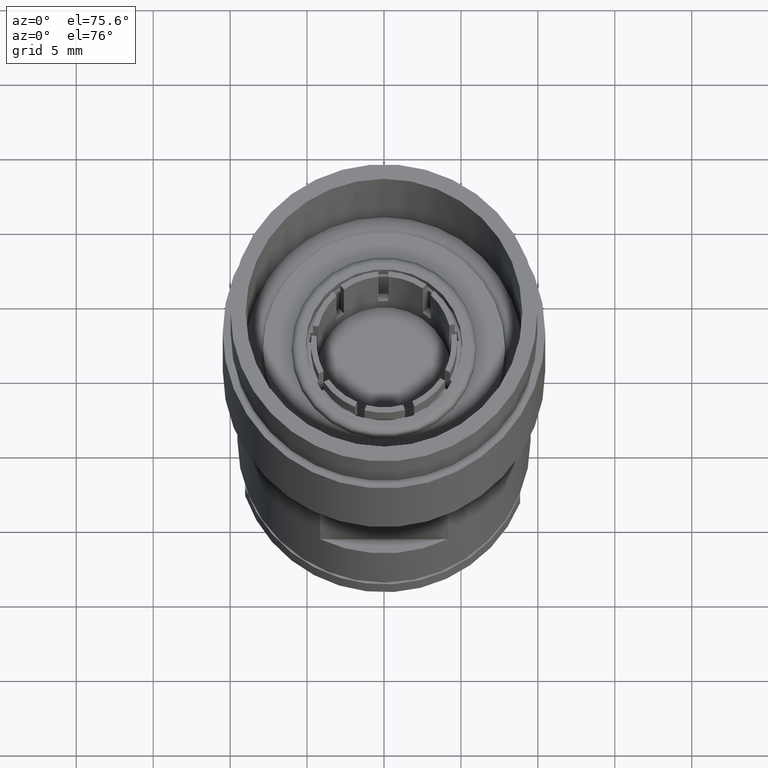
[diagram: clean part render]
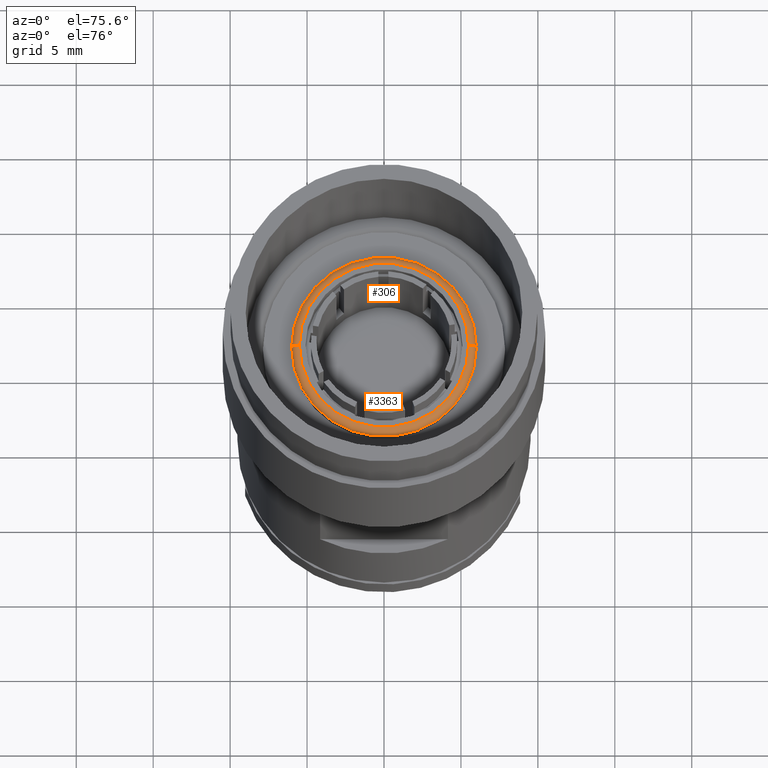
[diagram: same view with one multi-face feature highlighted, each face labeled with its STEP entity id]
A machine part, auxiliary view. The highlighted faces form ONE feature: a constant-radius fillet chain: 2 tangent blend faces with common blend radius 0.508 mm. The faces share edges in the B-rep.
Their STEP definitions:
[1] entity #306 (Torus):
#6 = ORIENTED_EDGE ( 'NONE', *, *, #978, .F. ) ;
#11 = ORIENTED_EDGE ( 'NONE', *, *, #979, .F. ) ;
#12 = ORIENTED_EDGE ( 'NONE', *, *, #977, .T. ) ;
#15 = ORIENTED_EDGE ( 'NONE', *, *, #975, .T. ) ;
#113 = VERTEX_POINT ( 'NONE', #2594 ) ;
#151 = VERTEX_POINT ( 'NONE', #2556 ) ;
#155 = VERTEX_POINT ( 'NONE', #2552 ) ;
#156 = VERTEX_POINT ( 'NONE', #2551 ) ;
#306 = ADVANCED_FACE ( 'NONE', ( #2059 ), #2051, .T. ) ;
#873 = AXIS2_PLACEMENT_3D ( 'NONE', #2171, #2170, #2169 ) ;
#874 = AXIS2_PLACEMENT_3D ( 'NONE', #2174, #2173, #2172 ) ;
#875 = AXIS2_PLACEMENT_3D ( 'NONE', #2177, #2176, #2175 ) ;
#876 = AXIS2_PLACEMENT_3D ( 'NONE', #2181, #2180, #2179 ) ;
#942 = AXIS2_PLACEMENT_3D ( 'NONE', #2420, #2425, #2417 ) ;
#975 = EDGE_CURVE ( 'NONE', #151, #113, #1988, .T. ) ;
#977 = EDGE_CURVE ( 'NONE', #113, #155, #1986, .T. ) ;
#978 = EDGE_CURVE ( 'NONE', #156, #155, #1977, .T. ) ;
#979 = EDGE_CURVE ( 'NONE', #151, #156, #1982, .T. ) ;
#1699 = EDGE_LOOP ( 'NONE', ( #15, #12, #6, #11 ) ) ;
#1977 = CIRCLE ( 'NONE', #874, 0.2164009914261354500 ) ;
#1982 = CIRCLE ( 'NONE', #873, 0.01999999999999992400 ) ;
#1986 = CIRCLE ( 'NONE', #875, 0.01999999999999999000 ) ;
#1988 = CIRCLE ( 'NONE', #876, 0.2364009914261354700 ) ;
#2051 = TOROIDAL_SURFACE ( 'NONE', #942, 0.2164009914261354500, 0.01999999999999997600 ) ;
#2059 = FACE_OUTER_BOUND ( 'NONE', #1699, .T. ) ;
#2169 = DIRECTION ( 'NONE',  ( 0.0000000000000000000, 0.0000000000000000000, -1.000000000000000000 ) ) ;
#2170 = DIRECTION ( 'NONE',  ( 0.0000000000000000000, -1.000000000000000000, 0.0000000000000000000 ) ) ;
#2171 = CARTESIAN_POINT ( 'NONE',  ( 0.2164009914261354500, 0.0000000000000000000, 1.112923101740803700 ) ) ;
#2172 = DIRECTION ( 'NONE',  ( 1.000000000000000000, 0.0000000000000000000, 0.0000000000000000000 ) ) ;
#2173 = DIRECTION ( 'NONE',  ( -0.0000000000000000000, -0.0000000000000000000, 1.000000000000000000 ) ) ;
#2174 = CARTESIAN_POINT ( 'NONE',  ( 0.0000000000000000000, 0.0000000000000000000, 1.132923101740803500 ) ) ;
#2175 = DIRECTION ( 'NONE',  ( -1.000000000000000000, 1.224646799147353000E-016, 0.0000000000000000000 ) ) ;
#2176 = DIRECTION ( 'NONE',  ( 1.224646799147353200E-016, 1.000000000000000000, 0.0000000000000000000 ) ) ;
#2177 = CARTESIAN_POINT ( 'NONE',  ( -0.2164009914261354500, 2.650147814823306100E-017, 1.112923101740803700 ) ) ;
#2179 = DIRECTION ( 'NONE',  ( 1.000000000000000000, 0.0000000000000000000, 0.0000000000000000000 ) ) ;
#2180 = DIRECTION ( 'NONE',  ( -0.0000000000000000000, -0.0000000000000000000, 1.000000000000000000 ) ) ;
#2181 = CARTESIAN_POINT ( 'NONE',  ( 0.0000000000000000000, 0.0000000000000000000, 1.112923101740803700 ) ) ;
#2417 = DIRECTION ( 'NONE',  ( 1.000000000000000000, 0.0000000000000000000, 0.0000000000000000000 ) ) ;
#2420 = CARTESIAN_POINT ( 'NONE',  ( 0.0000000000000000000, 0.0000000000000000000, 1.112923101740803700 ) ) ;
#2425 = DIRECTION ( 'NONE',  ( -0.0000000000000000000, -0.0000000000000000000, 1.000000000000000000 ) ) ;
#2551 = CARTESIAN_POINT ( 'NONE',  ( 0.2164009914261354500, 0.0000000000000000000, 1.132923101740803500 ) ) ;
#2552 = CARTESIAN_POINT ( 'NONE',  ( -0.2164009914261354500, 2.772612494738041500E-017, 1.132923101740803500 ) ) ;
#2556 = CARTESIAN_POINT ( 'NONE',  ( 0.2364009914261354400, 0.0000000000000000000, 1.112923101740803700 ) ) ;
#2594 = CARTESIAN_POINT ( 'NONE',  ( -0.2364009914261354400, 2.895077174652776800E-017, 1.112923101740803700 ) ) ;
[2] entity #3363 (Torus):
#113 = VERTEX_POINT ( 'NONE', #2594 ) ;
#151 = VERTEX_POINT ( 'NONE', #2556 ) ;
#155 = VERTEX_POINT ( 'NONE', #2552 ) ;
#156 = VERTEX_POINT ( 'NONE', #2551 ) ;
#454 = FACE_OUTER_BOUND ( 'NONE', #1630, .T. ) ;
#461 = CIRCLE ( 'NONE', #786, 0.2364009914261354700 ) ;
#462 = CIRCLE ( 'NONE', #787, 0.2164009914261354500 ) ;
#722 = TOROIDAL_SURFACE ( 'NONE', #778, 0.2164009914261354500, 0.01999999999999997600 ) ;
#778 = AXIS2_PLACEMENT_3D ( 'NONE', #3182, #3193, #3178 ) ;
#786 = AXIS2_PLACEMENT_3D ( 'NONE', #3303, #3301, #3299 ) ;
#787 = AXIS2_PLACEMENT_3D ( 'NONE', #3307, #3304, #3302 ) ;
#873 = AXIS2_PLACEMENT_3D ( 'NONE', #2171, #2170, #2169 ) ;
#875 = AXIS2_PLACEMENT_3D ( 'NONE', #2177, #2176, #2175 ) ;
#977 = EDGE_CURVE ( 'NONE', #113, #155, #1986, .T. ) ;
#979 = EDGE_CURVE ( 'NONE', #151, #156, #1982, .T. ) ;
#1187 = EDGE_CURVE ( 'NONE', #155, #156, #462, .T. ) ;
#1188 = EDGE_CURVE ( 'NONE', #113, #151, #461, .T. ) ;
#1545 = ORIENTED_EDGE ( 'NONE', *, *, #1187, .F. ) ;
#1556 = ORIENTED_EDGE ( 'NONE', *, *, #977, .F. ) ;
#1565 = ORIENTED_EDGE ( 'NONE', *, *, #1188, .T. ) ;
#1630 = EDGE_LOOP ( 'NONE', ( #1556, #1565, #1653, #1545 ) ) ;
#1653 = ORIENTED_EDGE ( 'NONE', *, *, #979, .T. ) ;
#1982 = CIRCLE ( 'NONE', #873, 0.01999999999999992400 ) ;
#1986 = CIRCLE ( 'NONE', #875, 0.01999999999999999000 ) ;
#2169 = DIRECTION ( 'NONE',  ( 0.0000000000000000000, 0.0000000000000000000, -1.000000000000000000 ) ) ;
#2170 = DIRECTION ( 'NONE',  ( 0.0000000000000000000, -1.000000000000000000, 0.0000000000000000000 ) ) ;
#2171 = CARTESIAN_POINT ( 'NONE',  ( 0.2164009914261354500, 0.0000000000000000000, 1.112923101740803700 ) ) ;
#2175 = DIRECTION ( 'NONE',  ( -1.000000000000000000, 1.224646799147353000E-016, 0.0000000000000000000 ) ) ;
#2176 = DIRECTION ( 'NONE',  ( 1.224646799147353200E-016, 1.000000000000000000, 0.0000000000000000000 ) ) ;
#2177 = CARTESIAN_POINT ( 'NONE',  ( -0.2164009914261354500, 2.650147814823306100E-017, 1.112923101740803700 ) ) ;
#2551 = CARTESIAN_POINT ( 'NONE',  ( 0.2164009914261354500, 0.0000000000000000000, 1.132923101740803500 ) ) ;
#2552 = CARTESIAN_POINT ( 'NONE',  ( -0.2164009914261354500, 2.772612494738041500E-017, 1.132923101740803500 ) ) ;
#2556 = CARTESIAN_POINT ( 'NONE',  ( 0.2364009914261354400, 0.0000000000000000000, 1.112923101740803700 ) ) ;
#2594 = CARTESIAN_POINT ( 'NONE',  ( -0.2364009914261354400, 2.895077174652776800E-017, 1.112923101740803700 ) ) ;
#3178 = DIRECTION ( 'NONE',  ( 1.000000000000000000, 0.0000000000000000000, 0.0000000000000000000 ) ) ;
#3182 = CARTESIAN_POINT ( 'NONE',  ( 0.0000000000000000000, 0.0000000000000000000, 1.112923101740803700 ) ) ;
#3193 = DIRECTION ( 'NONE',  ( -0.0000000000000000000, -0.0000000000000000000, 1.000000000000000000 ) ) ;
#3299 = DIRECTION ( 'NONE',  ( 1.000000000000000000, 0.0000000000000000000, 0.0000000000000000000 ) ) ;
#3301 = DIRECTION ( 'NONE',  ( -0.0000000000000000000, -0.0000000000000000000, 1.000000000000000000 ) ) ;
#3302 = DIRECTION ( 'NONE',  ( 1.000000000000000000, 0.0000000000000000000, 0.0000000000000000000 ) ) ;
#3303 = CARTESIAN_POINT ( 'NONE',  ( 0.0000000000000000000, 0.0000000000000000000, 1.112923101740803700 ) ) ;
#3304 = DIRECTION ( 'NONE',  ( -0.0000000000000000000, -0.0000000000000000000, 1.000000000000000000 ) ) ;
#3307 = CARTESIAN_POINT ( 'NONE',  ( 0.0000000000000000000, 0.0000000000000000000, 1.132923101740803500 ) ) ;
#3363 = ADVANCED_FACE ( 'NONE', ( #454 ), #722, .T. ) ;